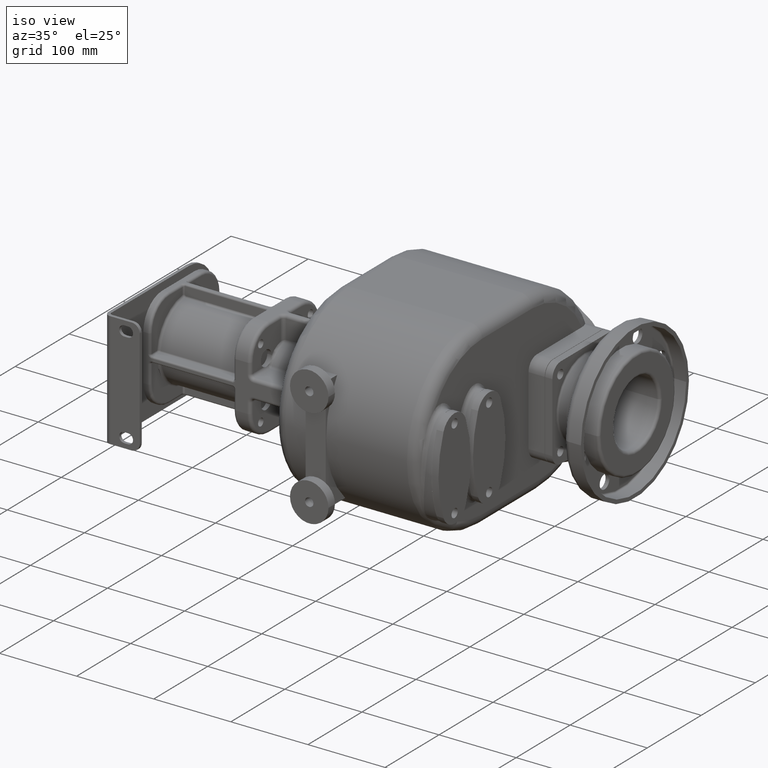
[diagram: clean part render]
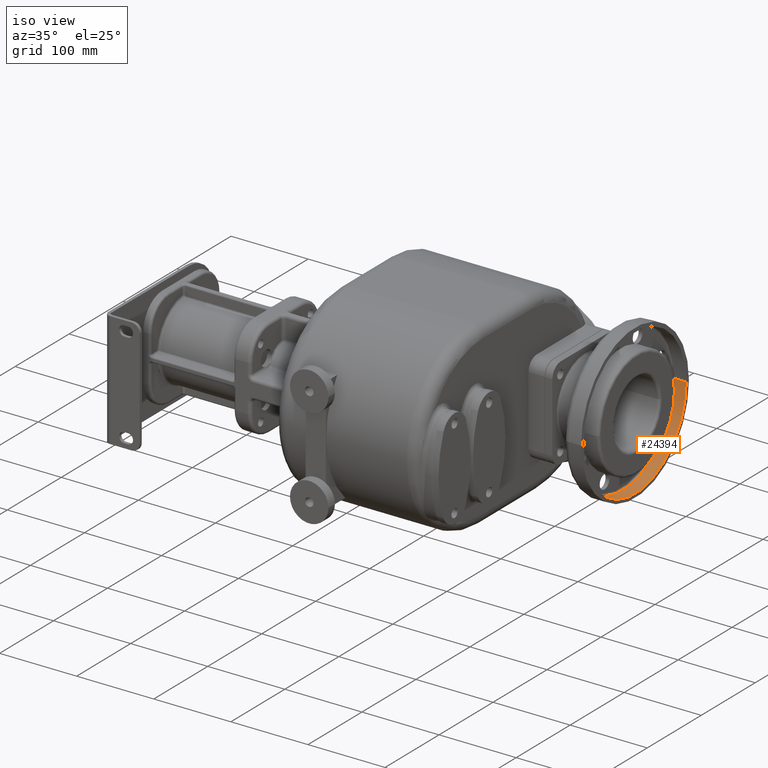
[diagram: same view with one face highlighted and labeled with its STEP entity id]
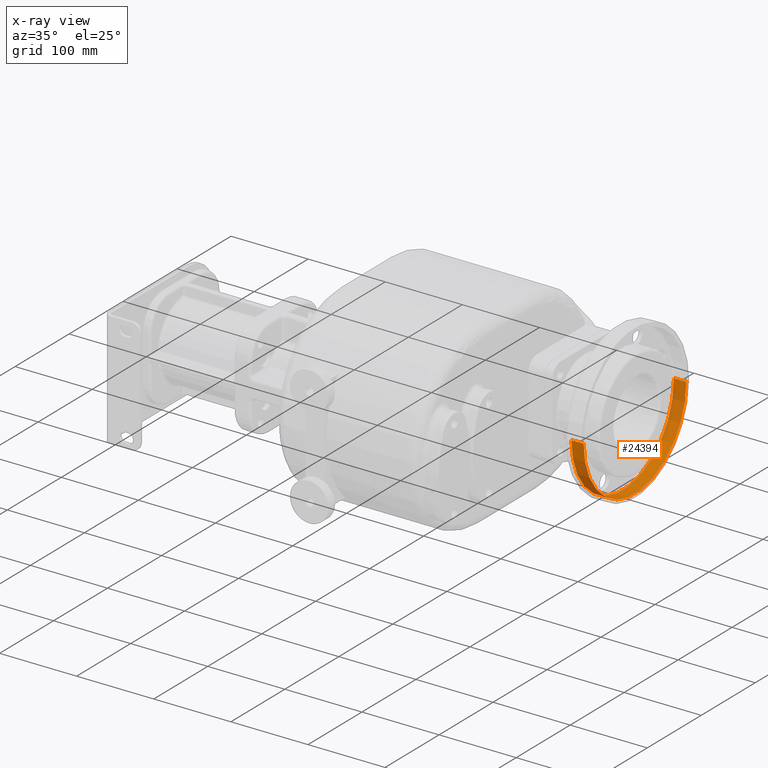
[diagram: x-ray of the same camera — body ghosted, the highlighted face saturated]
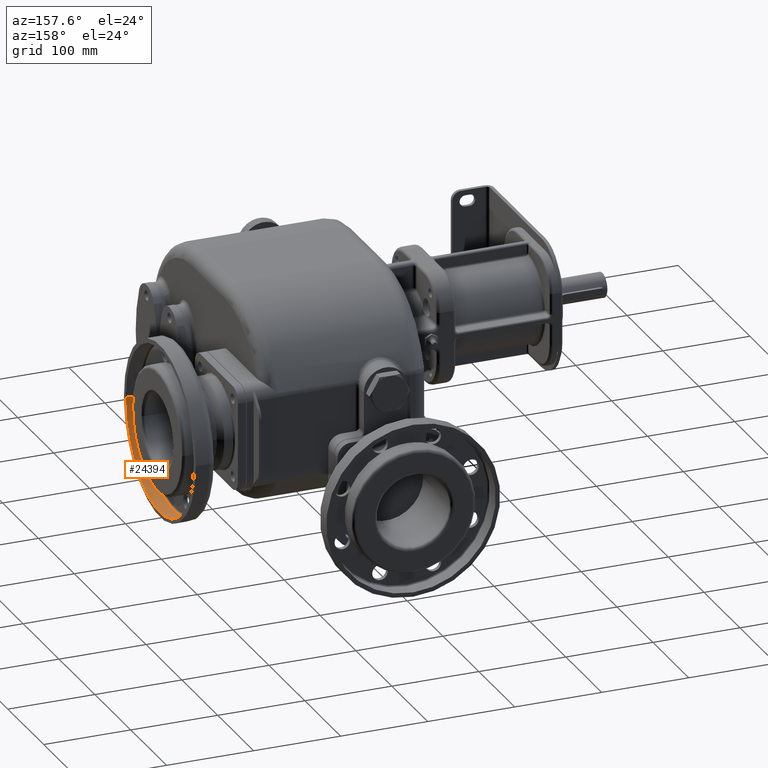
[diagram: same view with one face highlighted and labeled with its STEP entity id]
A machine part, iso view. The second image highlights one B-rep face of the part: STEP entity #24394.
The next image is the same camera in x-ray: the body ghosted, the highlighted face saturated — about 0% of this face is hidden behind the body in this view.
A second angle (auxiliary view) of the same face is appended — the face is thin or edge-on in the first view.
In plain terms, the highlighted cylindrical surface (partial cylindrical patch) has radius 95 mm, axis along (1, 0, 0).
Its self-contained STEP definition (entity closure, byte-faithful):
#4169=CARTESIAN_POINT('',(2.285E2,2.65E2,-1.4E1));
#4170=DIRECTION('',(1.E0,0.E0,0.E0));
#4171=DIRECTION('',(0.E0,-1.E0,0.E0));
#4172=AXIS2_PLACEMENT_3D('',#4169,#4170,#4171);
#4174=DIRECTION('',(1.E0,0.E0,0.E0));
#4175=VECTOR('',#4174,1.6E1);
#4176=CARTESIAN_POINT('',(2.125E2,1.7E2,-1.4E1));
#4177=LINE('',#4176,#4175);
#4178=DIRECTION('',(1.E0,0.E0,0.E0));
#4179=VECTOR('',#4178,1.6E1);
#4180=CARTESIAN_POINT('',(2.125E2,3.6E2,-1.4E1));
#4181=LINE('',#4180,#4179);
#4187=CARTESIAN_POINT('',(2.125E2,2.65E2,-1.4E1));
#4188=DIRECTION('',(1.E0,0.E0,0.E0));
#4189=DIRECTION('',(0.E0,-1.E0,0.E0));
#4190=AXIS2_PLACEMENT_3D('',#4187,#4188,#4189);
#17655=CARTESIAN_POINT('',(2.125E2,1.7E2,-1.4E1));
#17657=VERTEX_POINT('',#17655);
#17658=CARTESIAN_POINT('',(2.285E2,1.7E2,-1.4E1));
#17659=VERTEX_POINT('',#17658);
#17675=CARTESIAN_POINT('',(2.125E2,3.6E2,-1.4E1));
#17677=VERTEX_POINT('',#17675);
#17678=CARTESIAN_POINT('',(2.285E2,3.6E2,-1.4E1));
#17679=VERTEX_POINT('',#17678);
#24382=CARTESIAN_POINT('',(1.815E2,2.65E2,-1.4E1));
#24383=DIRECTION('',(1.E0,0.E0,0.E0));
#24384=DIRECTION('',(0.E0,1.E0,0.E0));
#24385=AXIS2_PLACEMENT_3D('',#24382,#24383,#24384);
#24386=CYLINDRICAL_SURFACE('',#24385,9.5E1);
#24387=ORIENTED_EDGE('',*,*,#24372,.F.);
#24389=ORIENTED_EDGE('',*,*,#24388,.T.);
#24390=ORIENTED_EDGE('',*,*,#24375,.T.);
#24391=ORIENTED_EDGE('',*,*,#24362,.F.);
#24392=EDGE_LOOP('',(#24387,#24389,#24390,#24391));
#24393=FACE_OUTER_BOUND('',#24392,.F.);
#24394=ADVANCED_FACE('',(#24393),#24386,.F.);
#4173=CIRCLE('',#4172,9.5E1);
#4191=CIRCLE('',#4190,9.5E1);
#24362=EDGE_CURVE('',#17659,#17679,#4173,.T.);
#24372=EDGE_CURVE('',#17657,#17659,#4177,.T.);
#24375=EDGE_CURVE('',#17677,#17679,#4181,.T.);
#24388=EDGE_CURVE('',#17657,#17677,#4191,.T.);